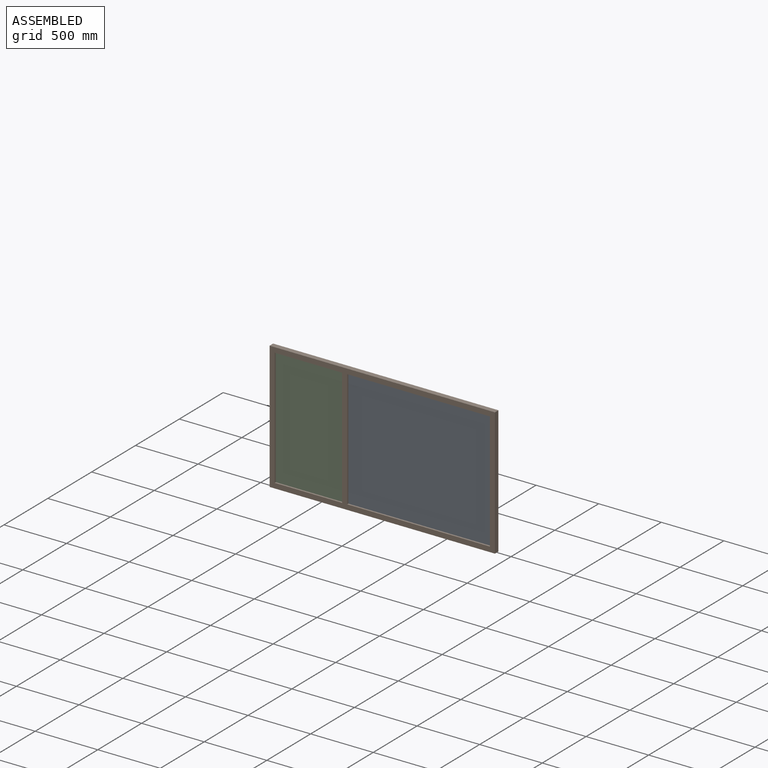
[diagram: assembled view]
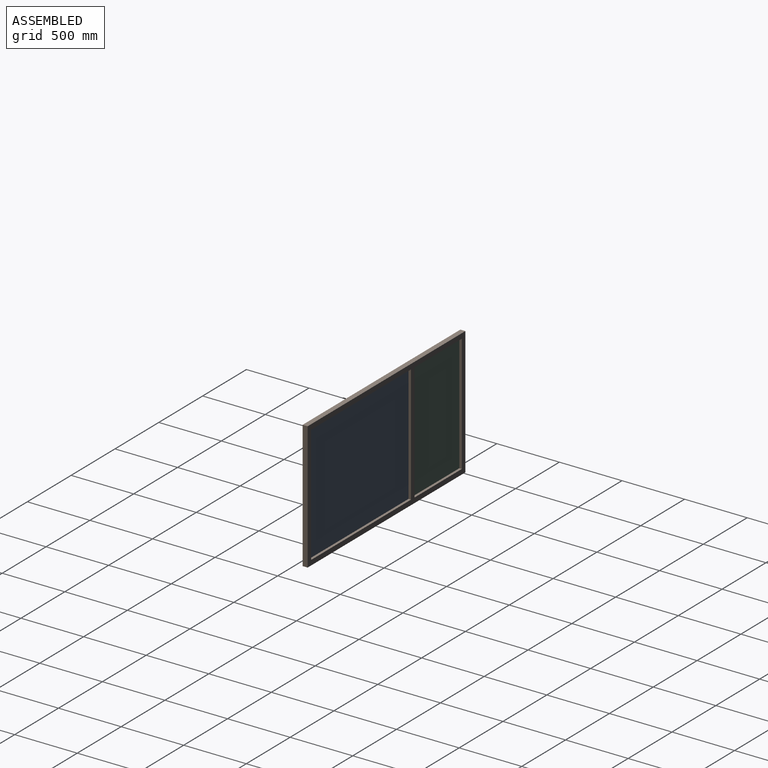
[diagram: assembled view, second angle]
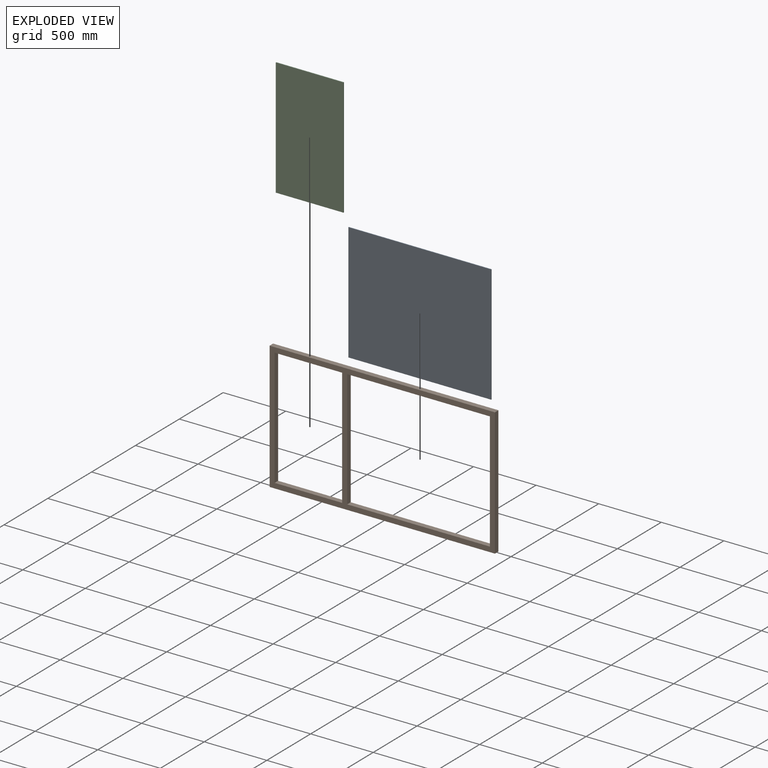
[diagram: exploded view]
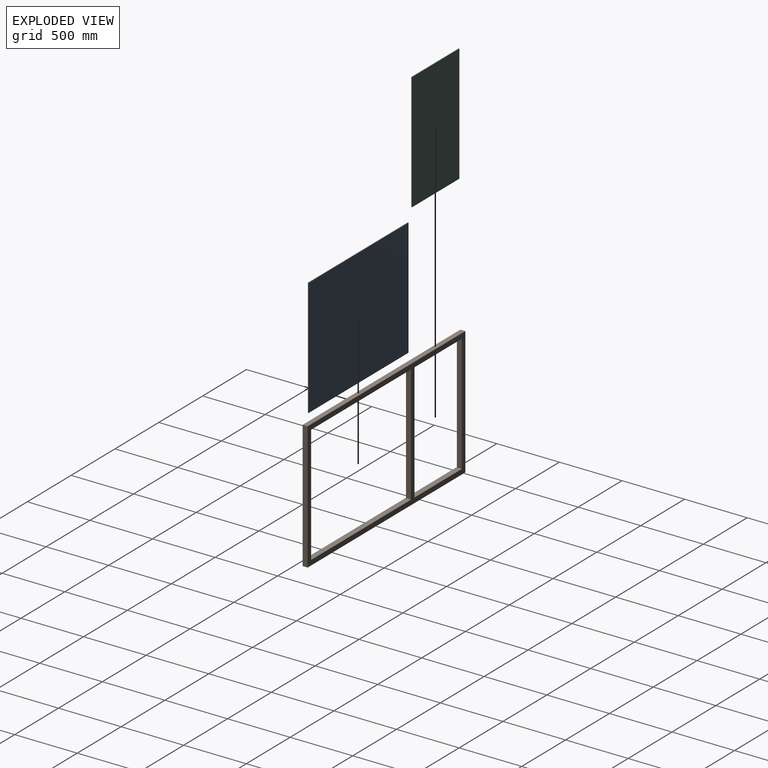
[diagram: exploded view, second angle]
ASSEMBLY  parts=3 mates=2
PART A: 6 faces, bbox 1140x6x940 mm
  f0: plane 1140x6mm, normal (0,0,1), area 6840mm2, adj f1,f3,f4,f5
  f1: plane 940x6mm, normal (-1,0,0), area 5640mm2, adj f0,f2,f4,f5
  f2: plane 1140x6mm, normal (0,0,-1), area 6840mm2, adj f1,f3,f4,f5
  f3: plane 940x6mm, normal (1,0,0), area 5640mm2, adj f0,f2,f4,f5
  f4: plane 1140x940mm, normal (0,1,0), area 1071600mm2, adj f0,f1,f2,f3
  f5: plane 1140x940mm, normal (0,-1,0), area 1071600mm2, adj f0,f1,f2,f3
PART B: 14 faces, bbox 1800x40x1020 mm
  f0: plane 540x40mm, normal (0,0,-1), area 21600mm2, adj f1,f11,f12,f13
  f1: plane 940x40mm, normal (-1,0,0), area 37600mm2, adj f0,f2,f12,f13
  f2: plane 540x40mm, normal (0,0,1), area 21600mm2, adj f1,f11,f12,f13
  f3: plane 940x40mm, normal (1,0,0), area 37600mm2, adj f4,f9,f12,f13
  f4: plane 1140x40mm, normal (0,0,-1), area 45600mm2, adj f3,f5,f12,f13
  f5: plane 940x40mm, normal (-1,0,0), area 37600mm2, adj f4,f9,f12,f13
  f6: plane 1020x40mm, normal (-1,0,0), area 40800mm2, adj f7,f10,f12,f13
  f7: plane 1800x40mm, normal (0,0,-1), area 72000mm2, adj f6,f8,f12,f13
  f8: plane 1020x40mm, normal (1,0,0), area 40800mm2, adj f7,f10,f12,f13
  f9: plane 1140x40mm, normal (0,0,1), area 45600mm2, adj f3,f5,f12,f13
  f10: plane 1800x40mm, normal (0,0,1), area 72000mm2, adj f6,f8,f12,f13
  f11: plane 940x40mm, normal (1,0,0), area 37600mm2, adj f0,f2,f12,f13
  f12: plane 1800x1020mm, normal (0,-1,0), area 256800mm2, adj f0,f1,f2,f3,f4,f5,f6,f7
  f13: plane 1800x1020mm, normal (0,1,0), area 256800mm2, adj f0,f1,f2,f3,f4,f5,f6,f7
PART C: 6 faces, bbox 540x6x940 mm
  f0: plane 940x6mm, normal (1,0,0), area 5640mm2, adj f1,f3,f4,f5
  f1: plane 540x6mm, normal (0,0,1), area 3240mm2, adj f0,f2,f4,f5
  f2: plane 940x6mm, normal (-1,0,0), area 5640mm2, adj f1,f3,f4,f5
  f3: plane 540x6mm, normal (0,0,-1), area 3240mm2, adj f0,f2,f4,f5
  f4: plane 940x540mm, normal (0,1,0), area 507600mm2, adj f0,f1,f2,f3
  f5: plane 940x540mm, normal (0,-1,0), area 507600mm2, adj f0,f1,f2,f3
PLACE A t=(0,-26,0)mm
PLACE B at identity fixed
PLACE C t=(0,-26,0)mm
MATE revolute C.f3 <-> B.f2  axis (0,0,1) through (580,-20,40)mm
MATE fastened A.f2 <-> B.f9  axis (0,0,1) through (1760,-20,40)mm
